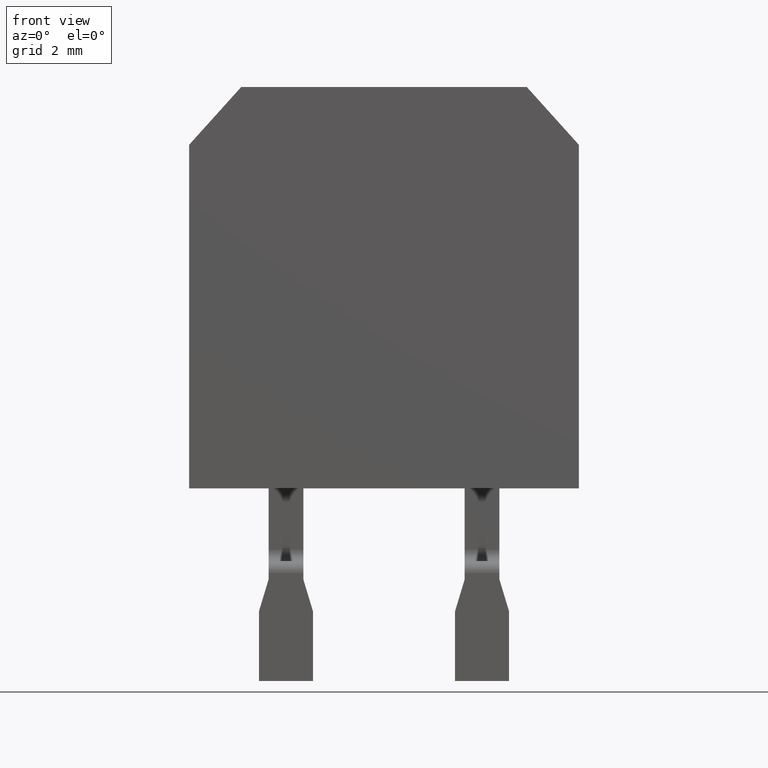
[diagram: clean part render]
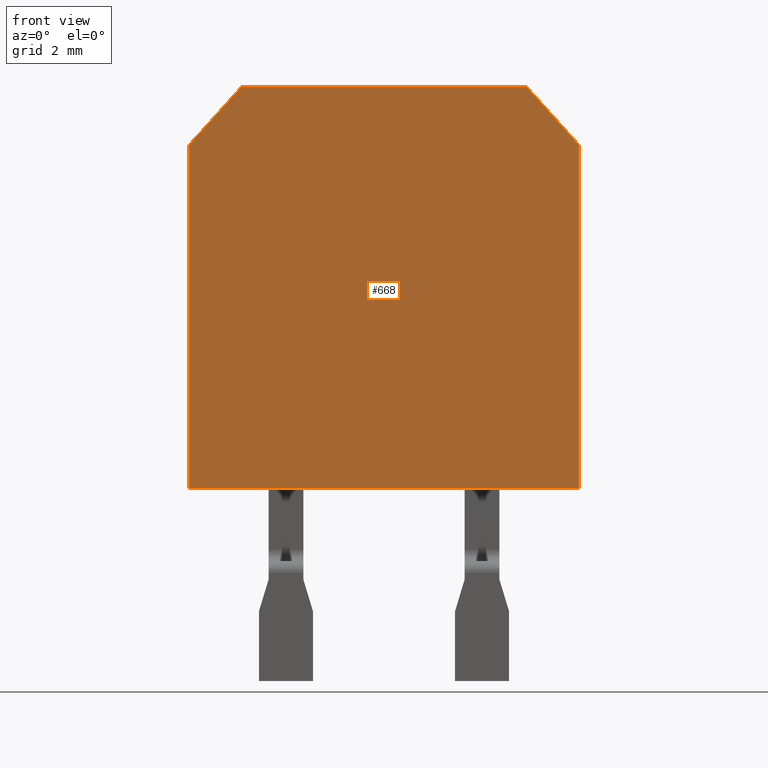
[diagram: same view with one face highlighted and labeled with its STEP entity id]
A machine part, front view. The second image highlights one B-rep face of the part: STEP entity #668.
In plain terms, the highlighted planar face has unit normal (0, 1, 0).
Its self-contained STEP definition (entity closure, byte-faithful):
#1=DIRECTION('',(-6.691306063589E-1,0.E0,-7.431448254774E-1));
#2=VECTOR('',#1,2.017543342317E0);
#3=CARTESIAN_POINT('',(-3.7E0,0.E0,6.E0));
#4=LINE('',#3,#2);
#5=DIRECTION('',(-1.E0,0.E0,0.E0));
#6=VECTOR('',#5,7.4E0);
#7=CARTESIAN_POINT('',(3.7E0,0.E0,6.E0));
#8=LINE('',#7,#6);
#9=DIRECTION('',(-6.691306063589E-1,0.E0,7.431448254774E-1));
#10=VECTOR('',#9,2.017543342317E0);
#11=CARTESIAN_POINT('',(5.05E0,0.E0,4.500673104981E0));
#12=LINE('',#11,#10);
#13=DIRECTION('',(-1.E0,0.E0,0.E0));
#14=VECTOR('',#13,1.01E1);
#15=CARTESIAN_POINT('',(5.05E0,0.E0,-4.4E0));
#16=LINE('',#15,#14);
#21=DIRECTION('',(0.E0,0.E0,-1.E0));
#22=VECTOR('',#21,8.900673104981E0);
#23=CARTESIAN_POINT('',(-5.05E0,0.E0,4.500673104981E0));
#24=LINE('',#23,#22);
#57=DIRECTION('',(0.E0,0.E0,1.E0));
#58=VECTOR('',#57,8.900673104981E0);
#59=CARTESIAN_POINT('',(5.05E0,0.E0,-4.4E0));
#60=LINE('',#59,#58);
#497=CARTESIAN_POINT('',(5.05E0,0.E0,-4.4E0));
#498=CARTESIAN_POINT('',(-5.05E0,0.E0,-4.4E0));
#499=VERTEX_POINT('',#497);
#500=VERTEX_POINT('',#498);
#525=CARTESIAN_POINT('',(3.7E0,0.E0,6.E0));
#526=CARTESIAN_POINT('',(-3.7E0,0.E0,6.E0));
#527=VERTEX_POINT('',#525);
#528=VERTEX_POINT('',#526);
#537=CARTESIAN_POINT('',(5.05E0,0.E0,4.500673104981E0));
#538=VERTEX_POINT('',#537);
#539=CARTESIAN_POINT('',(-5.05E0,0.E0,4.500673104981E0));
#540=VERTEX_POINT('',#539);
#649=CARTESIAN_POINT('',(0.E0,0.E0,0.E0));
#650=DIRECTION('',(0.E0,1.E0,0.E0));
#651=DIRECTION('',(1.E0,0.E0,0.E0));
#652=AXIS2_PLACEMENT_3D('',#649,#650,#651);
#653=PLANE('',#652);
#655=ORIENTED_EDGE('',*,*,#654,.F.);
#657=ORIENTED_EDGE('',*,*,#656,.F.);
#659=ORIENTED_EDGE('',*,*,#658,.F.);
#661=ORIENTED_EDGE('',*,*,#660,.F.);
#663=ORIENTED_EDGE('',*,*,#662,.F.);
#665=ORIENTED_EDGE('',*,*,#664,.T.);
#666=EDGE_LOOP('',(#655,#657,#659,#661,#663,#665));
#667=FACE_OUTER_BOUND('',#666,.F.);
#654=EDGE_CURVE('',#540,#500,#24,.T.);
#656=EDGE_CURVE('',#528,#540,#4,.T.);
#658=EDGE_CURVE('',#527,#528,#8,.T.);
#660=EDGE_CURVE('',#538,#527,#12,.T.);
#662=EDGE_CURVE('',#499,#538,#60,.T.);
#664=EDGE_CURVE('',#499,#500,#16,.T.);
#668=ADVANCED_FACE('',(#667),#653,.F.);